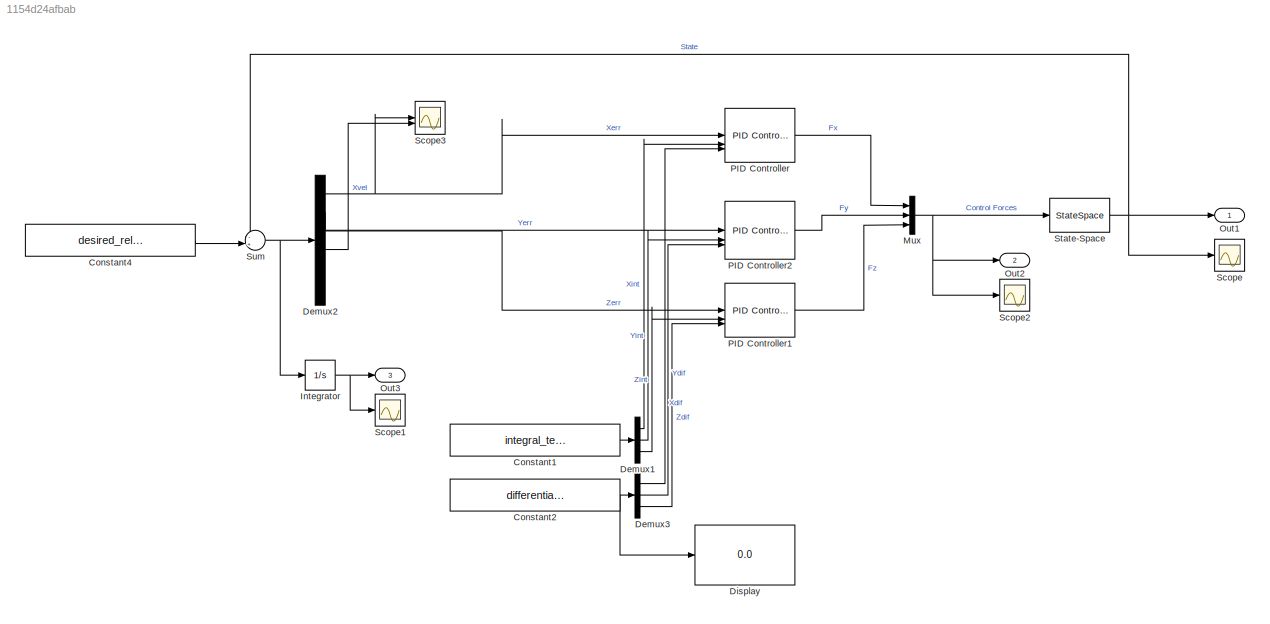
MODEL slx_1154d24afbab
KIND model
CONFIG AbsTol = auto
CONFIG EnableMultiTasking = off
CONFIG FixedStep = step_size
CONFIG MaxStep = auto
CONFIG MinStep = auto
CONFIG RelTol = 1e-3
CONFIG SampleTimeConstraint = Unconstrained
CONFIG SolverName = FixedStepAuto
CONFIG StartTime = 0.0
CONFIG StopTime = run_time
WORKSPACE source: mxarray member
WORKSPACE m: Simulink.Parameter (value not decoded)
BLOCK [Constant] Constant1
  Value = integral_term
BLOCK [Constant] Constant2
  Value = differential_term
BLOCK [Constant] Constant4
  Value = desired_relative_state
BLOCK [Demux] Demux1
  Outputs = 3
BLOCK [Demux] Demux2
  Outputs = 6
BLOCK [Demux] Demux3
  Outputs = 3
BLOCK [Display] Display
  Decimation = 1
BLOCK [Integrator] Integrator
BLOCK [Mux] Mux
  DisplayOption = bar
  Inputs = 3
BLOCK [Outport] Out1
  SignalName = state
BLOCK [Outport] Out2
  Port = 2
  SignalName = Control Forces
BLOCK [Outport] Out3
  Port = 3
  SignalName = Error Integral
BLOCK [Reference] PID Controller  REF=slpidlib/PID Controller
  SourceBlock = slpidlib/PID Controller
  SourceType = PID 1dof
BLOCK [Reference] PID Controller1  REF=slpidlib/PID Controller
  SourceBlock = slpidlib/PID Controller
  SourceType = PID 1dof
BLOCK [Reference] PID Controller2  REF=slpidlib/PID Controller
  SourceBlock = slpidlib/PID Controller
  SourceType = PID 1dof
BLOCK [Scope] Scope
  Floating = off
  NumInputPorts = 1
  ScopeSpecificationString = Simulink.scopes.TimeScopeBlockCfg('CurrentConfiguration', extmgr.ConfigurationSet(extmgr.Configuration('Core','General UI',true),extmgr.Configuration('Core','Source UI',true),extmgr.Configuration('Sources','WiredSimulink',true,'DataLoggingVariableName','ScopeData1'),extmgr.Configuration('Visuals','Time Domain',true,'SerializedDisplays',{struct('MinYLimReal','4.82177','MaxYLimReal','4.82273','YLabe...<+1485ch>
BLOCK [Scope] Scope1
  Floating = off
  NumInputPorts = 1
  ScopeSpecificationString = Simulink.scopes.TimeScopeBlockCfg('CurrentConfiguration', extmgr.ConfigurationSet(extmgr.Configuration('Core','General UI',true),extmgr.Configuration('Core','Source UI',true),extmgr.Configuration('Sources','WiredSimulink',true),extmgr.Configuration('Visuals','Time Domain',true,'SerializedDisplays',{struct('MinYLimReal','-1.11937','MaxYLimReal','0.21903','YLabelReal','','MinYLimMag','0.00000','MaxY...<+1405ch>
BLOCK [Scope] Scope2
  Floating = off
  NumInputPorts = 1
  ScopeSpecificationString = Simulink.scopes.TimeScopeBlockCfg('CurrentConfiguration', extmgr.ConfigurationSet(extmgr.Configuration('Core','General UI',true),extmgr.Configuration('Core','Source UI',true),extmgr.Configuration('Sources','WiredSimulink',true,'DataLoggingVariableName','ScopeData2'),extmgr.Configuration('Visuals','Time Domain',true,'SerializedDisplays',{struct('MinYLimReal','-0.13518','MaxYLimReal','0.19123','YLab...<+1512ch>
BLOCK [Scope] Scope3
  Floating = off
  NumInputPorts = 2
  ScopeSpecificationString = Simulink.scopes.TimeScopeBlockCfg('CurrentConfiguration', extmgr.ConfigurationSet(extmgr.Configuration('Core','General UI',true),extmgr.Configuration('Core','Source UI',true),extmgr.Configuration('Sources','WiredSimulink',true,'DataLoggingVariableName','ScopeData1'),extmgr.Configuration('Visuals','Time Domain',true,'SerializedDisplays',{struct('MinYLimReal','1.16846','MaxYLimReal','1.16965','YLabe...<+1440ch>
BLOCK [StateSpace] State-Space
  A = A
  B = B
  C = C
  D = D
  InitialCondition = relative_state
BLOCK [Sum] Sum
  Inputs = -+|
LINE Constant1:1 -> Demux1:1
NET Constant2:1 -> Demux3:1, Display:1
LINE Constant4:1 -> Sum:2
LINE Demux1:1 -> PID Controller:2
LINE Demux1:2 -> PID Controller2:2
LINE Demux1:3 -> PID Controller1:2
NET Demux2:1 -> PID Controller:1, Scope3:1
LINE Demux2:2 -> PID Controller2:1
LINE Demux2:3 -> PID Controller1:1
LINE Demux2:4 -> Scope3:2
LINE Demux3:1 -> PID Controller:3
LINE Demux3:2 -> PID Controller2:3
LINE Demux3:3 -> PID Controller1:3
NET Integrator:1 -> Out3:1, Scope1:1
NET Mux:1 -> Out2:1, Scope2:1, State-Space:1
LINE PID Controller1:1 -> Mux:3
LINE PID Controller2:1 -> Mux:2
LINE PID Controller:1 -> Mux:1
NET State-Space:1 -> Out1:1, Scope:1, Sum:1
NET Sum:1 -> Demux2:1, Integrator:1
note: NET lines group one-source signal fan-out (src -> all destinations, sorted); 1:1 wires keep LINE
